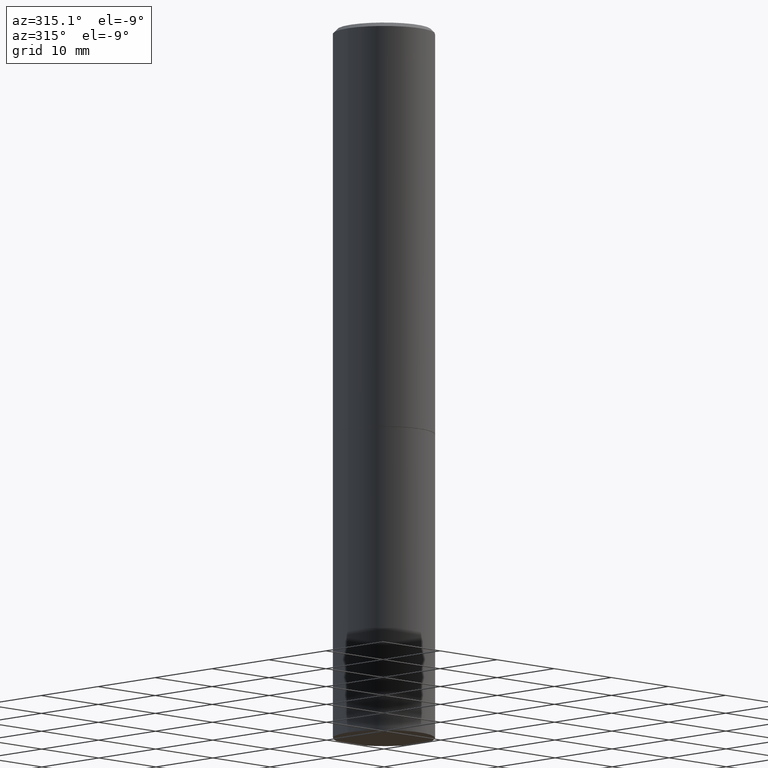
[diagram: clean part render]
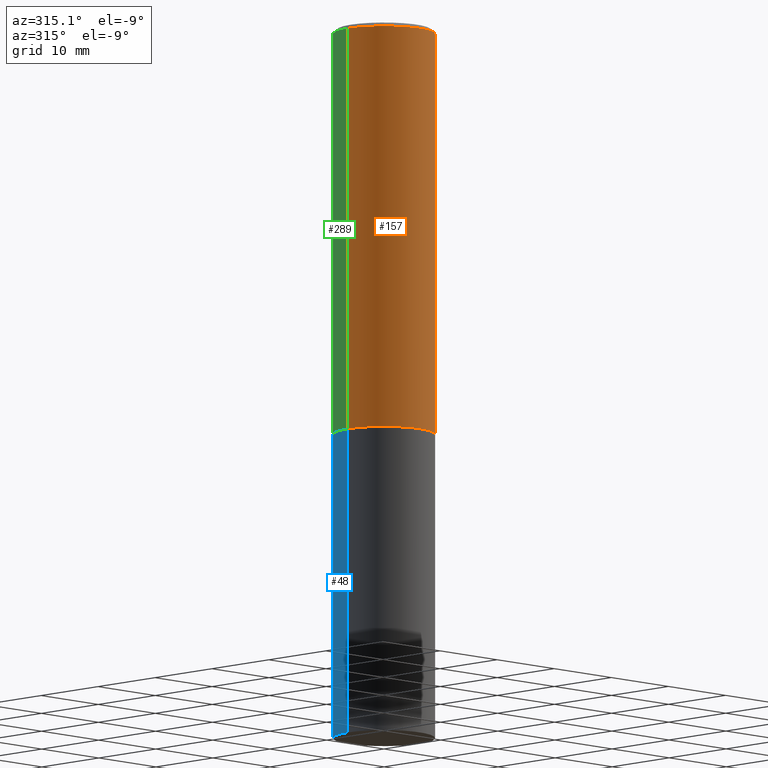
[diagram: same view with three faces highlighted in distinct colors, each labeled with its STEP entity id]
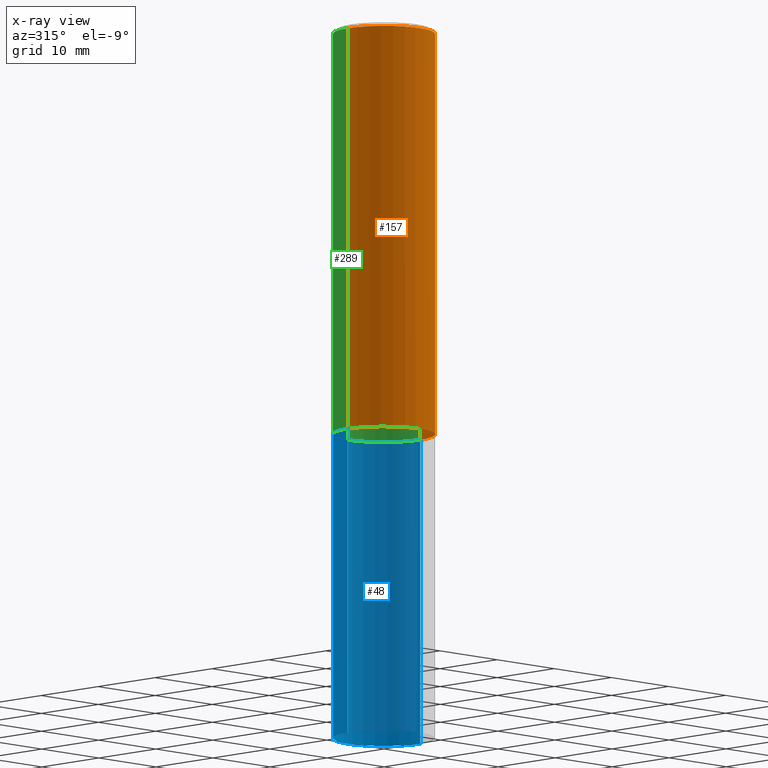
[diagram: x-ray of the same camera — body ghosted, the three highlighted faces saturated]
A machine part, auxiliary view with three faces highlighted in distinct colors.
The next image is the same camera in x-ray (body ghosted, the three faces saturated) — at least one of them is partly hidden behind the body in this view.
Their STEP definitions:

[orange] entity #157 — the highlighted cylindrical surface (partial cylindrical patch) has radius 6.35 mm, axis along (-0, 0, 1).
#1 = CARTESIAN_POINT ( 'NONE',  ( 4.888492143564087030E-29, -6.979471196347446580E-15, -1.998999999999999666 ) ) ;
#7 = CIRCLE ( 'NONE', #300, 0.2500000000000000000 ) ;
#9 = ORIENTED_EDGE ( 'NONE', *, *, #225, .T. ) ;
#26 = DIRECTION ( 'NONE',  ( 1.000000000000000000, -6.982962677686266711E-15, 4.876176775795935793E-29 ) ) ;
#30 = CARTESIAN_POINT ( 'NONE',  ( 0.2500000000000000000, -8.725211865769012469E-15, -1.998999999999999666 ) ) ;
#55 = LINE ( 'NONE', #87, #330 ) ;
#56 = DIRECTION ( 'NONE',  ( -2.445468806185136877E-29, 3.491481338843145188E-15, 1.000000000000000000 ) ) ;
#70 = CIRCLE ( 'NONE', #294, 0.2499999999999998057 ) ;
#77 = VECTOR ( 'NONE', #56, 39.37007874015748143 ) ;
#82 = VERTEX_POINT ( 'NONE', #283 ) ;
#87 = CARTESIAN_POINT ( 'NONE',  ( 0.2499999999999998890, -1.745740669421565889E-15, 1.219044193948983388E-29 ) ) ;
#88 = FACE_OUTER_BOUND ( 'NONE', #290, .T. ) ;
#101 = CARTESIAN_POINT ( 'NONE',  ( 4.890937612370280165E-31, -6.982962677686301470E-17, -0.02000000000000003164 ) ) ;
#105 = EDGE_CURVE ( 'NONE', #155, #271, #55, .T. ) ;
#115 = DIRECTION ( 'NONE',  ( 1.000000000000000000, -6.982962677686266711E-15, 0.000000000000000000 ) ) ;
#117 = CYLINDRICAL_SURFACE ( 'NONE', #234, 0.2499999999999998890 ) ;
#127 = DIRECTION ( 'NONE',  ( 1.000000000000000000, -6.982962677686266711E-15, 0.000000000000000000 ) ) ;
#144 = CARTESIAN_POINT ( 'NONE',  ( -0.2499999999999998890, 1.776356839400249676E-15, -1.229733772563726025E-29 ) ) ;
#155 = VERTEX_POINT ( 'NONE', #30 ) ;
#157 = ADVANCED_FACE ( 'NONE', ( #88 ), #117, .T. ) ;
#172 = DIRECTION ( 'NONE',  ( -2.445468806185136597E-29, 3.491481338843145583E-15, 1.000000000000000000 ) ) ;
#175 = DIRECTION ( 'NONE',  ( -2.445468806185136877E-29, 3.491481338843145188E-15, 1.000000000000000000 ) ) ;
#180 = CARTESIAN_POINT ( 'NONE',  ( 0.2499999999999998057, -1.784954126219744611E-15, -0.02000000000000003164 ) ) ;
#193 = ORIENTED_EDGE ( 'NONE', *, *, #105, .T. ) ;
#196 = ORIENTED_EDGE ( 'NONE', *, *, #314, .F. ) ;
#212 = EDGE_CURVE ( 'NONE', #82, #274, #313, .T. ) ;
#218 = DIRECTION ( 'NONE',  ( -2.445468806185136597E-29, 3.491481338843145583E-15, 1.000000000000000000 ) ) ;
#225 = EDGE_CURVE ( 'NONE', #82, #155, #7, .T. ) ;
#234 = AXIS2_PLACEMENT_3D ( 'NONE', #284, #342, #26 ) ;
#271 = VERTEX_POINT ( 'NONE', #180 ) ;
#274 = VERTEX_POINT ( 'NONE', #351 ) ;
#283 = CARTESIAN_POINT ( 'NONE',  ( -0.2500000000000000000, -1.748293572161903489E-15, -1.998999999999999666 ) ) ;
#284 = CARTESIAN_POINT ( 'NONE',  ( 0.000000000000000000, 0.000000000000000000, 0.000000000000000000 ) ) ;
#290 = EDGE_LOOP ( 'NONE', ( #337, #9, #193, #196 ) ) ;
#294 = AXIS2_PLACEMENT_3D ( 'NONE', #101, #218, #127 ) ;
#300 = AXIS2_PLACEMENT_3D ( 'NONE', #1, #172, #115 ) ;
#313 = LINE ( 'NONE', #144, #77 ) ;
#314 = EDGE_CURVE ( 'NONE', #274, #271, #70, .T. ) ;
#330 = VECTOR ( 'NONE', #175, 39.37007874015748143 ) ;
#337 = ORIENTED_EDGE ( 'NONE', *, *, #212, .F. ) ;
#342 = DIRECTION ( 'NONE',  ( -2.445468806185136597E-29, 3.491481338843145583E-15, 1.000000000000000000 ) ) ;
#351 = CARTESIAN_POINT ( 'NONE',  ( -0.2499999999999998057, 1.675911042644702196E-15, -0.02000000000000003164 ) ) ;

[blue] entity #48 — the highlighted cylindrical surface (partial cylindrical patch) has radius 6.35 mm, axis along (-0, 0, 1).
#16 = FACE_OUTER_BOUND ( 'NONE', #151, .T. ) ;
#48 = ADVANCED_FACE ( 'NONE', ( #16 ), #222, .T. ) ;
#53 = ORIENTED_EDGE ( 'NONE', *, *, #322, .T. ) ;
#64 = AXIS2_PLACEMENT_3D ( 'NONE', #121, #339, #200 ) ;
#66 = EDGE_CURVE ( 'NONE', #215, #86, #270, .T. ) ;
#73 = LINE ( 'NONE', #184, #134 ) ;
#79 = ORIENTED_EDGE ( 'NONE', *, *, #116, .F. ) ;
#86 = VERTEX_POINT ( 'NONE', #346 ) ;
#93 = DIRECTION ( 'NONE',  ( -2.445468806185136597E-29, 3.491481338843145583E-15, 1.000000000000000000 ) ) ;
#114 = DIRECTION ( 'NONE',  ( 1.000000000000000000, -6.982962677686266711E-15, 0.000000000000000000 ) ) ;
#116 = EDGE_CURVE ( 'NONE', #327, #215, #169, .T. ) ;
#121 = CARTESIAN_POINT ( 'NONE',  ( 8.559140821647976968E-29, -1.222018468595100934E-14, -3.500000000000000000 ) ) ;
#122 = VECTOR ( 'NONE', #315, 39.37007874015748143 ) ;
#131 = DIRECTION ( 'NONE',  ( -2.445468806185136597E-29, 3.491481338843145583E-15, 1.000000000000000000 ) ) ;
#134 = VECTOR ( 'NONE', #239, 39.37007874015748143 ) ;
#151 = EDGE_LOOP ( 'NONE', ( #280, #53, #158, #79 ) ) ;
#158 = ORIENTED_EDGE ( 'NONE', *, *, #66, .F. ) ;
#160 = CARTESIAN_POINT ( 'NONE',  ( 4.890937612370272633E-29, -6.982962677686290376E-15, -1.999999999999999778 ) ) ;
#169 = LINE ( 'NONE', #286, #122 ) ;
#179 = CARTESIAN_POINT ( 'NONE',  ( 0.2500000000000000000, -1.396592535537257602E-14, -3.500000000000000000 ) ) ;
#184 = CARTESIAN_POINT ( 'NONE',  ( -0.2500000000000000000, 1.776356839400250465E-15, -1.229733772563726445E-29 ) ) ;
#188 = CARTESIAN_POINT ( 'NONE',  ( 0.000000000000000000, 0.000000000000000000, 0.000000000000000000 ) ) ;
#191 = VERTEX_POINT ( 'NONE', #258 ) ;
#200 = DIRECTION ( 'NONE',  ( 1.000000000000000000, -6.982962677686270655E-15, 0.000000000000000000 ) ) ;
#201 = EDGE_CURVE ( 'NONE', #327, #191, #217, .T. ) ;
#215 = VERTEX_POINT ( 'NONE', #260 ) ;
#216 = AXIS2_PLACEMENT_3D ( 'NONE', #160, #93, #114 ) ;
#217 = CIRCLE ( 'NONE', #64, 0.2500000000000000000 ) ;
#222 = CYLINDRICAL_SURFACE ( 'NONE', #362, 0.2500000000000000000 ) ;
#239 = DIRECTION ( 'NONE',  ( -2.445468806185136877E-29, 3.491481338843145188E-15, 1.000000000000000000 ) ) ;
#258 = CARTESIAN_POINT ( 'NONE',  ( -0.2500000000000000000, -7.825216842418397817E-15, -3.500000000000000000 ) ) ;
#260 = CARTESIAN_POINT ( 'NONE',  ( 0.2500000000000000000, -8.728703347107857054E-15, -1.999999999999999778 ) ) ;
#270 = CIRCLE ( 'NONE', #216, 0.2500000000000000000 ) ;
#280 = ORIENTED_EDGE ( 'NONE', *, *, #201, .T. ) ;
#286 = CARTESIAN_POINT ( 'NONE',  ( 0.2500000000000000000, -1.745740669421566678E-15, 1.219044193948983948E-29 ) ) ;
#299 = DIRECTION ( 'NONE',  ( 1.000000000000000000, -6.982962677686266711E-15, 4.876176775795935793E-29 ) ) ;
#315 = DIRECTION ( 'NONE',  ( -2.445468806185136877E-29, 3.491481338843145188E-15, 1.000000000000000000 ) ) ;
#322 = EDGE_CURVE ( 'NONE', #191, #86, #73, .T. ) ;
#327 = VERTEX_POINT ( 'NONE', #179 ) ;
#339 = DIRECTION ( 'NONE',  ( -2.445468806185136597E-29, 3.491481338843145583E-15, 1.000000000000000000 ) ) ;
#346 = CARTESIAN_POINT ( 'NONE',  ( -0.2500000000000000000, -7.825216842418397817E-15, -1.999999999999999778 ) ) ;
#362 = AXIS2_PLACEMENT_3D ( 'NONE', #188, #131, #299 ) ;

[green] entity #289 — the highlighted cylindrical surface (partial cylindrical patch) has radius 6.35 mm, axis along (-0, 0, 1).
#11 = CYLINDRICAL_SURFACE ( 'NONE', #164, 0.2499999999999998890 ) ;
#24 = EDGE_LOOP ( 'NONE', ( #308, #109, #306, #75 ) ) ;
#30 = CARTESIAN_POINT ( 'NONE',  ( 0.2500000000000000000, -8.725211865769012469E-15, -1.998999999999999666 ) ) ;
#35 = EDGE_CURVE ( 'NONE', #155, #82, #338, .T. ) ;
#37 = CIRCLE ( 'NONE', #182, 0.2499999999999998057 ) ;
#38 = DIRECTION ( 'NONE',  ( 1.000000000000000000, -6.982962677686266711E-15, 4.876176775795935793E-29 ) ) ;
#55 = LINE ( 'NONE', #87, #330 ) ;
#56 = DIRECTION ( 'NONE',  ( -2.445468806185136877E-29, 3.491481338843145188E-15, 1.000000000000000000 ) ) ;
#57 = AXIS2_PLACEMENT_3D ( 'NONE', #231, #304, #357 ) ;
#75 = ORIENTED_EDGE ( 'NONE', *, *, #105, .F. ) ;
#77 = VECTOR ( 'NONE', #56, 39.37007874015748143 ) ;
#82 = VERTEX_POINT ( 'NONE', #283 ) ;
#87 = CARTESIAN_POINT ( 'NONE',  ( 0.2499999999999998890, -1.745740669421565889E-15, 1.219044193948983388E-29 ) ) ;
#105 = EDGE_CURVE ( 'NONE', #155, #271, #55, .T. ) ;
#109 = ORIENTED_EDGE ( 'NONE', *, *, #212, .T. ) ;
#144 = CARTESIAN_POINT ( 'NONE',  ( -0.2499999999999998890, 1.776356839400249676E-15, -1.229733772563726025E-29 ) ) ;
#155 = VERTEX_POINT ( 'NONE', #30 ) ;
#164 = AXIS2_PLACEMENT_3D ( 'NONE', #211, #349, #38 ) ;
#175 = DIRECTION ( 'NONE',  ( -2.445468806185136877E-29, 3.491481338843145188E-15, 1.000000000000000000 ) ) ;
#180 = CARTESIAN_POINT ( 'NONE',  ( 0.2499999999999998057, -1.784954126219744611E-15, -0.02000000000000003164 ) ) ;
#182 = AXIS2_PLACEMENT_3D ( 'NONE', #318, #293, #187 ) ;
#187 = DIRECTION ( 'NONE',  ( 1.000000000000000000, -6.982962677686266711E-15, 0.000000000000000000 ) ) ;
#211 = CARTESIAN_POINT ( 'NONE',  ( 0.000000000000000000, 0.000000000000000000, 0.000000000000000000 ) ) ;
#212 = EDGE_CURVE ( 'NONE', #82, #274, #313, .T. ) ;
#231 = CARTESIAN_POINT ( 'NONE',  ( 4.888492143564087030E-29, -6.979471196347446580E-15, -1.998999999999999666 ) ) ;
#271 = VERTEX_POINT ( 'NONE', #180 ) ;
#274 = VERTEX_POINT ( 'NONE', #351 ) ;
#283 = CARTESIAN_POINT ( 'NONE',  ( -0.2500000000000000000, -1.748293572161903489E-15, -1.998999999999999666 ) ) ;
#289 = ADVANCED_FACE ( 'NONE', ( #325 ), #11, .T. ) ;
#293 = DIRECTION ( 'NONE',  ( -2.445468806185136597E-29, 3.491481338843145583E-15, 1.000000000000000000 ) ) ;
#304 = DIRECTION ( 'NONE',  ( -2.445468806185136597E-29, 3.491481338843145583E-15, 1.000000000000000000 ) ) ;
#306 = ORIENTED_EDGE ( 'NONE', *, *, #328, .F. ) ;
#308 = ORIENTED_EDGE ( 'NONE', *, *, #35, .T. ) ;
#313 = LINE ( 'NONE', #144, #77 ) ;
#318 = CARTESIAN_POINT ( 'NONE',  ( 4.890937612370280165E-31, -6.982962677686301470E-17, -0.02000000000000003164 ) ) ;
#325 = FACE_OUTER_BOUND ( 'NONE', #24, .T. ) ;
#328 = EDGE_CURVE ( 'NONE', #271, #274, #37, .T. ) ;
#330 = VECTOR ( 'NONE', #175, 39.37007874015748143 ) ;
#338 = CIRCLE ( 'NONE', #57, 0.2500000000000000000 ) ;
#349 = DIRECTION ( 'NONE',  ( -2.445468806185136597E-29, 3.491481338843145583E-15, 1.000000000000000000 ) ) ;
#351 = CARTESIAN_POINT ( 'NONE',  ( -0.2499999999999998057, 1.675911042644702196E-15, -0.02000000000000003164 ) ) ;
#357 = DIRECTION ( 'NONE',  ( 1.000000000000000000, -6.982962677686266711E-15, 0.000000000000000000 ) ) ;